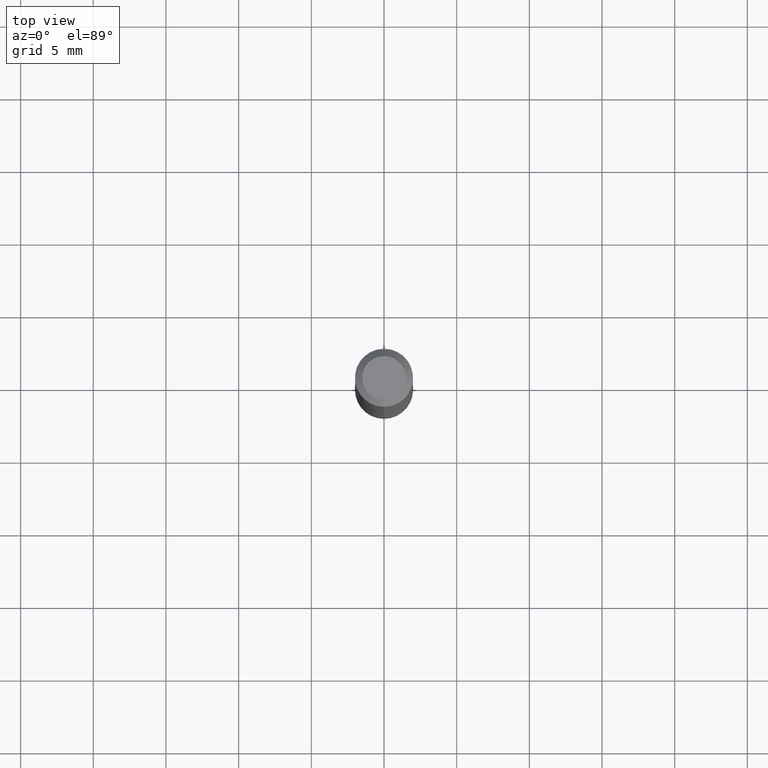
[diagram: clean part render]
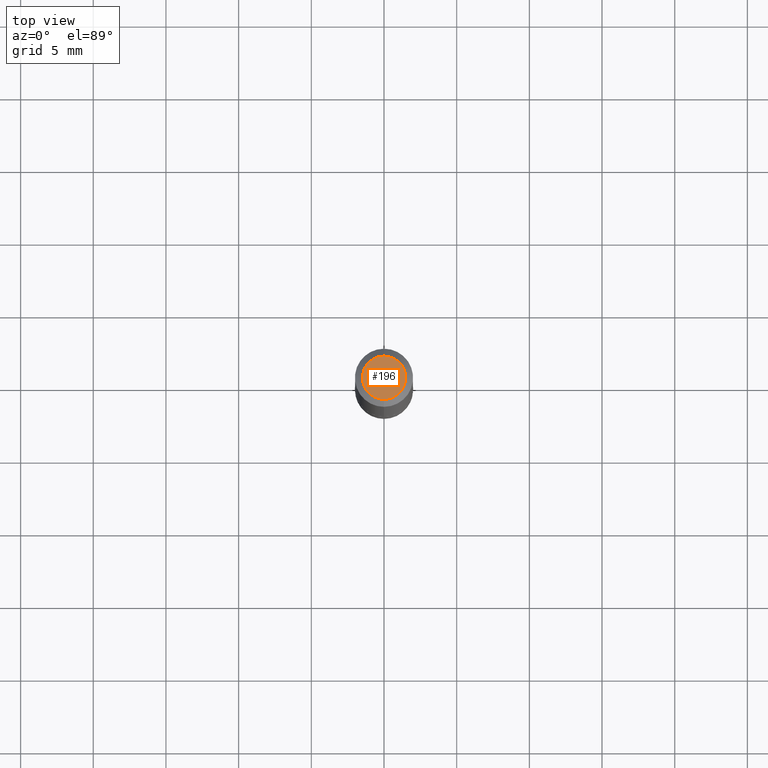
[diagram: same view with one face highlighted and labeled with its STEP entity id]
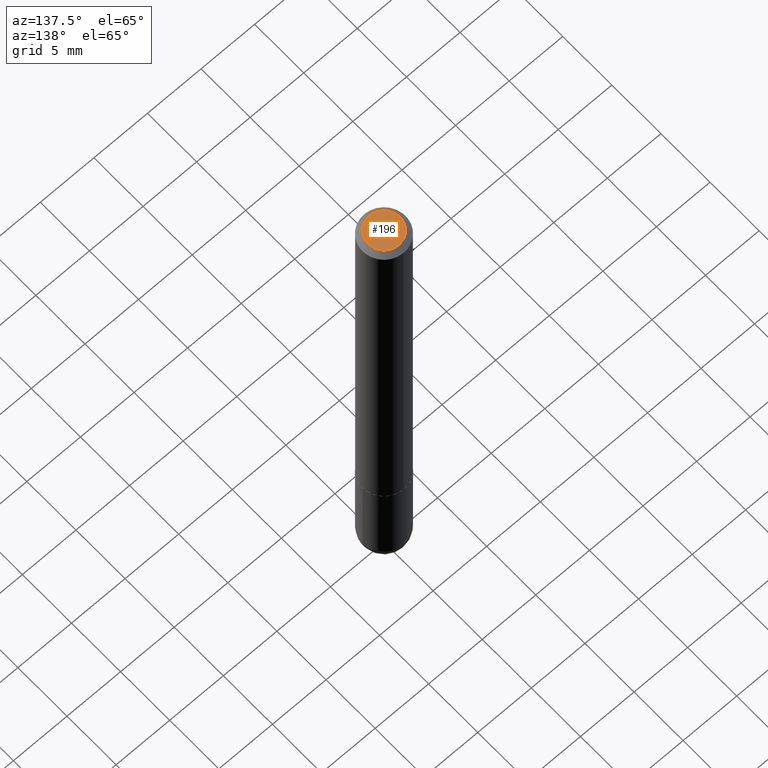
[diagram: same view with one face highlighted and labeled with its STEP entity id]
A machine part, top view. The second image highlights one B-rep face of the part: STEP entity #196.
A second angle (auxiliary view) of the same face is appended — the face is thin or edge-on in the first view.
In plain terms, the highlighted planar face has unit normal (0, -0, -1).
Its self-contained STEP definition (entity closure, byte-faithful):
#3 = EDGE_CURVE ( 'NONE', #275, #246, #411, .T. ) ;
#23 = DIRECTION ( 'NONE',  ( -6.982962677686266711E-15, -1.000000000000000000, 3.491368223897362270E-15 ) ) ;
#25 = DIRECTION ( 'NONE',  ( -2.445547793929605997E-29, 3.491368223897361875E-15, 1.000000000000000000 ) ) ;
#27 = CARTESIAN_POINT ( 'NONE',  ( 4.800786840909312308E-16, 0.05875000000000003830, -1.752449412263320642E-16 ) ) ;
#30 = PLANE ( 'NONE',  #112 ) ;
#45 = ORIENTED_EDGE ( 'NONE', *, *, #3, .T. ) ;
#64 = CARTESIAN_POINT ( 'NONE',  ( -4.716592373467927555E-16, -0.05875000000000003830, 2.349908250816082500E-16 ) ) ;
#96 = DIRECTION ( 'NONE',  ( -2.445547793929605997E-29, 3.491368223897361875E-15, 1.000000000000000000 ) ) ;
#112 = AXIS2_PLACEMENT_3D ( 'NONE', #308, #161, #278 ) ;
#125 = FACE_OUTER_BOUND ( 'NONE', #182, .T. ) ;
#159 = AXIS2_PLACEMENT_3D ( 'NONE', #249, #96, #279 ) ;
#161 = DIRECTION ( 'NONE',  ( 2.445547793929605997E-29, -3.491368223897361875E-15, -1.000000000000000000 ) ) ;
#168 = CIRCLE ( 'NONE', #159, 0.05875000000000003830 ) ;
#182 = EDGE_LOOP ( 'NONE', ( #293, #45 ) ) ;
#196 = ADVANCED_FACE ( 'NONE', ( #125 ), #30, .F. ) ;
#246 = VERTEX_POINT ( 'NONE', #27 ) ;
#249 = CARTESIAN_POINT ( 'NONE',  ( -7.305570722932256202E-46, 1.042974402004868536E-31, 2.987294192763809294E-17 ) ) ;
#275 = VERTEX_POINT ( 'NONE', #64 ) ;
#278 = DIRECTION ( 'NONE',  ( 6.982962677686265922E-15, 1.000000000000000000, -3.491368223897361875E-15 ) ) ;
#279 = DIRECTION ( 'NONE',  ( -6.982962677686266711E-15, -1.000000000000000000, 3.491368223897362270E-15 ) ) ;
#293 = ORIENTED_EDGE ( 'NONE', *, *, #326, .T. ) ;
#297 = AXIS2_PLACEMENT_3D ( 'NONE', #333, #25, #23 ) ;
#308 = CARTESIAN_POINT ( 'NONE',  ( 4.102490573140684256E-16, 0.05875000000000003830, -1.901814121901510983E-16 ) ) ;
#326 = EDGE_CURVE ( 'NONE', #246, #275, #168, .T. ) ;
#333 = CARTESIAN_POINT ( 'NONE',  ( -7.305570722932256202E-46, 1.042974402004868536E-31, 2.987294192763809294E-17 ) ) ;
#411 = CIRCLE ( 'NONE', #297, 0.05875000000000003830 ) ;